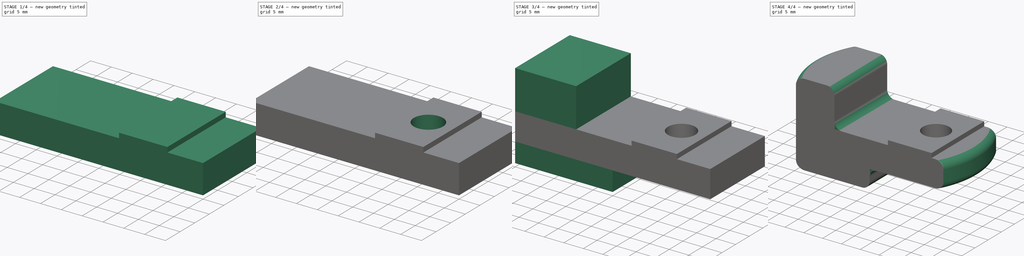
[diagram: build sequence overview — one tinted view per stage of 4, left to right]
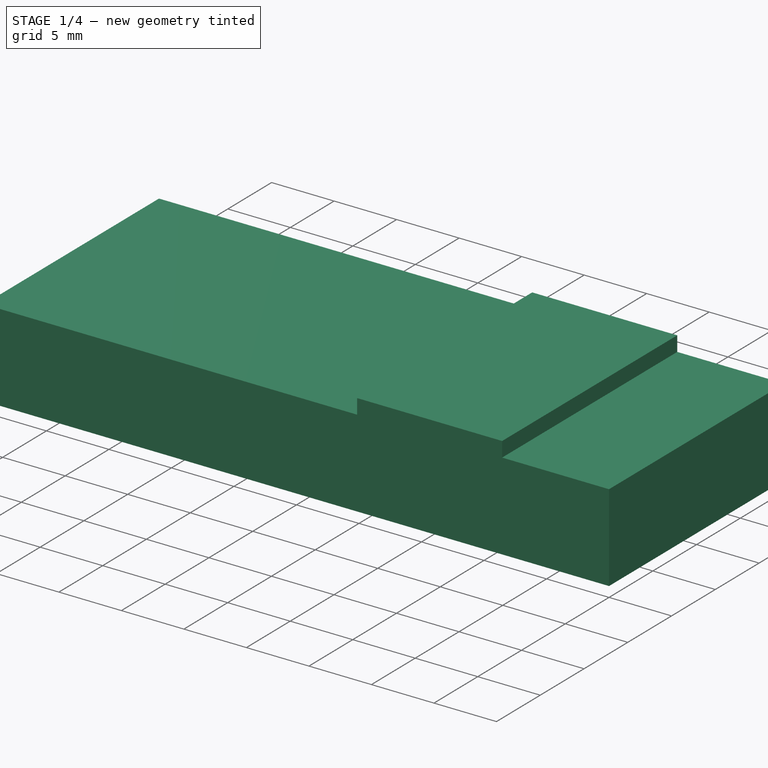
[diagram: stage 1 of 4 — iso view after this stage's code; geometry added in this stage tinted green]
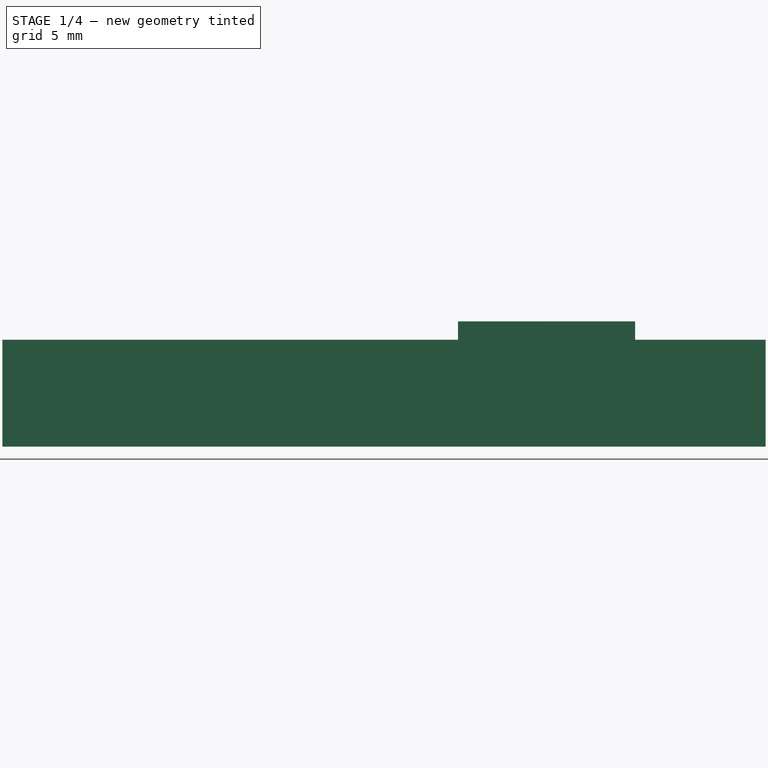
[diagram: stage 1 of 4 — front view after this stage's code; geometry added in this stage tinted green]
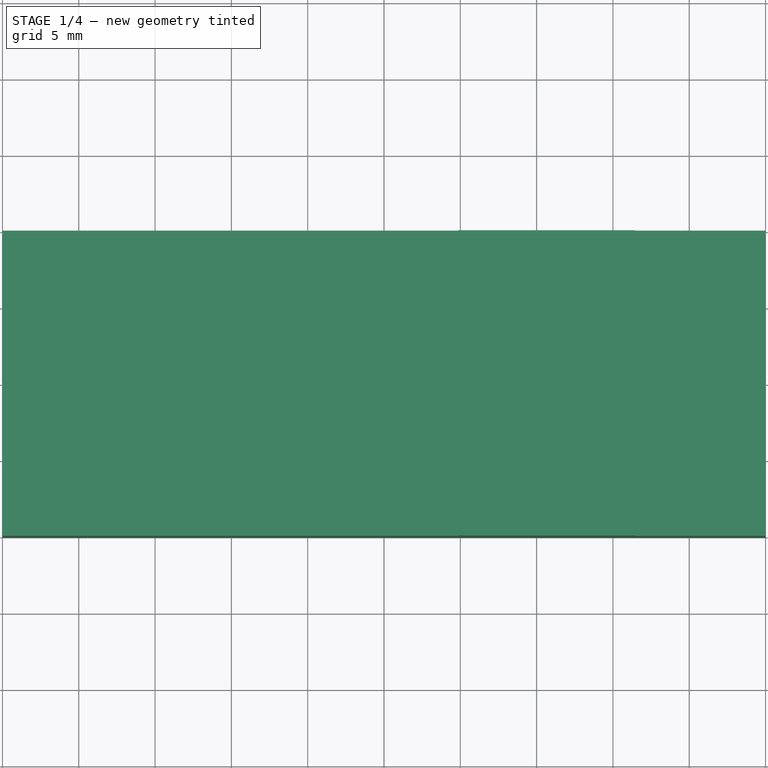
[diagram: stage 1 of 4 — top view after this stage's code; geometry added in this stage tinted green]
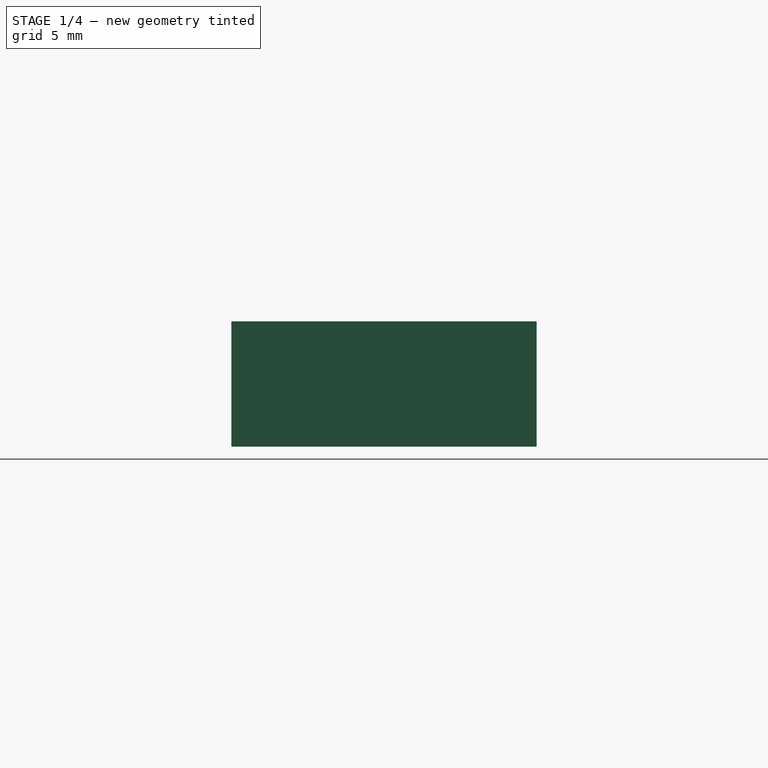
[diagram: stage 1 of 4 — right view after this stage's code; geometry added in this stage tinted green]
FCSTD DOCUMENT  (FreeCAD 0.17R10283 (Git))
Label: zbase_b
License: All rights reserved
LicenseURL: http://en.wikipedia.org/wiki/All_rights_reserved
objects: Sketcher::SketchObject×8, PartDesign::Pad×4, PartDesign::Pocket×4, PartDesign::Chamfer×1, PartDesign::Fillet×1, PartDesign::Body×1
note: 27 computed .brp shape members not serialized (recipe doc carries the construction recipe); baked Part::Feature solids carry a one-line shape summary decoded from their .brp

FEATURE [Sketcher::SketchObject] Sketch
  MapMode = 5
  Support = -> [XY_Plane]
  sketch-geometry (4):
    g0: LineSegment StartX=-25 StartY=10 StartZ=0 EndX=25 EndY=10 EndZ=0
    g1: LineSegment StartX=25 StartY=10 StartZ=0 EndX=25 EndY=-10 EndZ=0
    g2: LineSegment StartX=25 StartY=-10 StartZ=0 EndX=-25 EndY=-10 EndZ=0
    g3: LineSegment StartX=-25 StartY=-10 StartZ=0 EndX=-25 EndY=10 EndZ=0
  constraints (11):
    c: Coincident(g0,g1)
    c: Coincident(g1,g2)
    c: Coincident(g2,g3)
    c: Coincident(g3,g0)
    c: Horizontal(g0)
    c: Horizontal(g2)
    c: Vertical(g1)
    c: Vertical(g3)
    c: DistanceY(g1,g1) = 20
    c: DistanceX(g0,g0) = 50
    c: Symmetric(g0,g2,g-1)
FEATURE [PartDesign::Pad] Pad
  Length = 7
  Length2 = 100
  Profile = -> Sketch
  Type = 0
FEATURE [Sketcher::SketchObject] Sketch001
  ExternalGeometry = -> [Pad]
  MapMode = 5
  Placement = pos=(0,0,7) rot=(0,0,1;0rad)
  Support = -> [Pad]
  sketch-geometry (4):
    g0: LineSegment StartX=4.85 StartY=10 StartZ=0 EndX=16.45 EndY=10 EndZ=0
    g1: LineSegment StartX=16.45 StartY=10 StartZ=0 EndX=16.45 EndY=-10 EndZ=0
    g2: LineSegment StartX=16.45 StartY=-10 StartZ=0 EndX=4.85 EndY=-10 EndZ=0
    g3: LineSegment StartX=4.85 StartY=-10 StartZ=0 EndX=4.85 EndY=10 EndZ=0
  constraints (12):
    c: Coincident(g0,g1)
    c: Coincident(g1,g2)
    c: Coincident(g2,g3)
    c: Coincident(g3,g0)
    c: Horizontal(g0)
    c: Horizontal(g2)
    c: Vertical(g1)
    c: Vertical(g3)
    c: DistanceX(g-1,g0) = 4.85
    c: DistanceX(g0,g0) = 11.6
    c: DistanceY(g-3,g0) = 0
    c: Symmetric(g0,g1,g-1)
FEATURE [PartDesign::Pad] Pad001
  BaseFeature = -> Pad
  Length = 1.2
  Length2 = 100
  Profile = -> Sketch001
  Type = 0
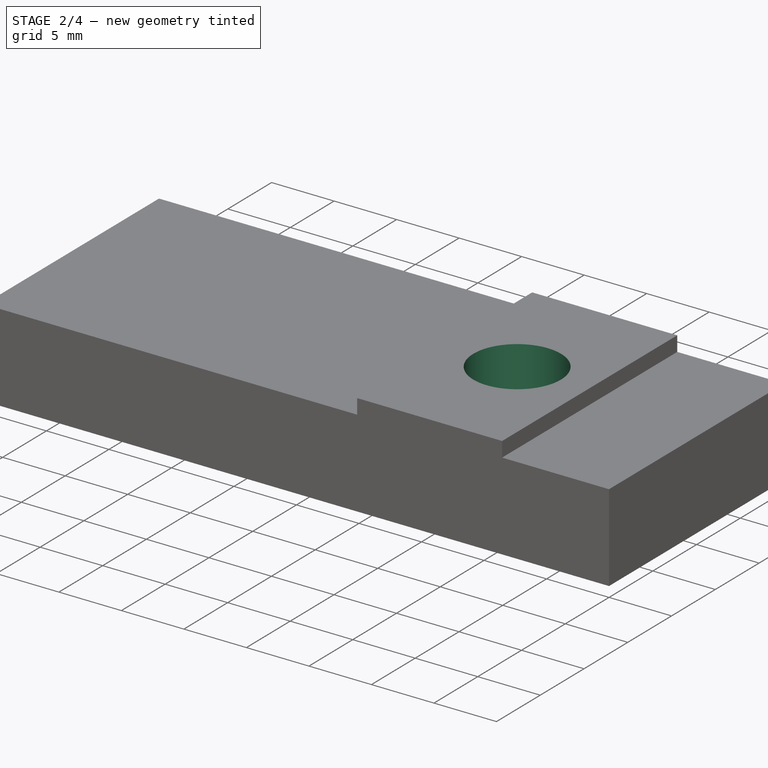
[diagram: stage 2 of 4 — iso view after this stage's code; geometry added in this stage tinted green]
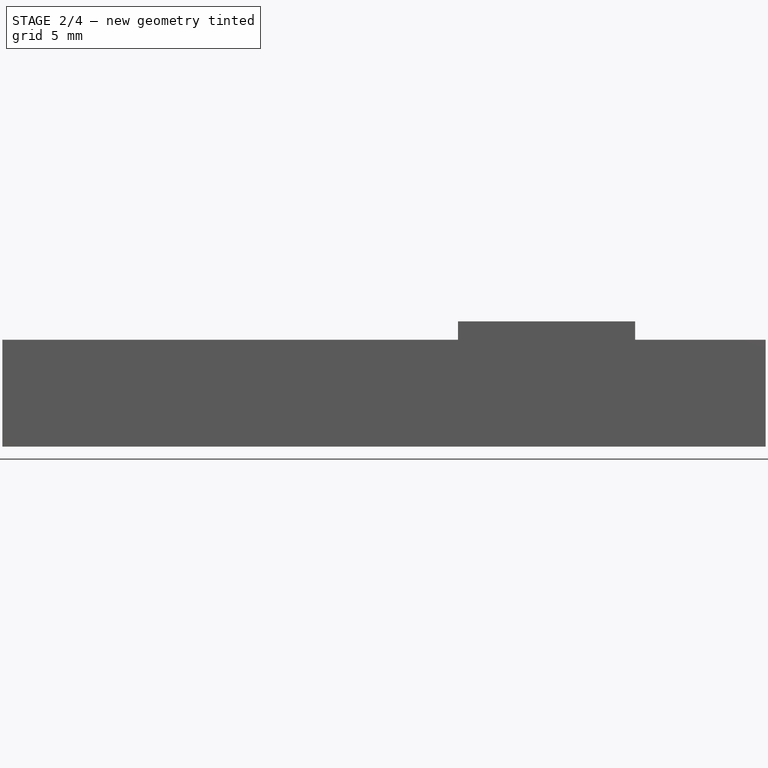
[diagram: stage 2 of 4 — front view after this stage's code; geometry added in this stage tinted green]
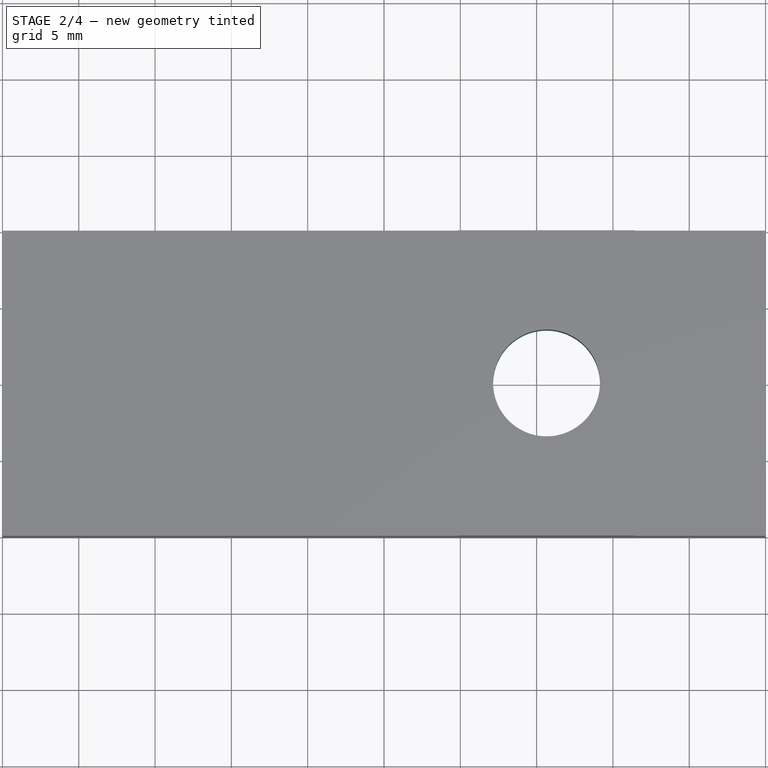
[diagram: stage 2 of 4 — top view after this stage's code; geometry added in this stage tinted green]
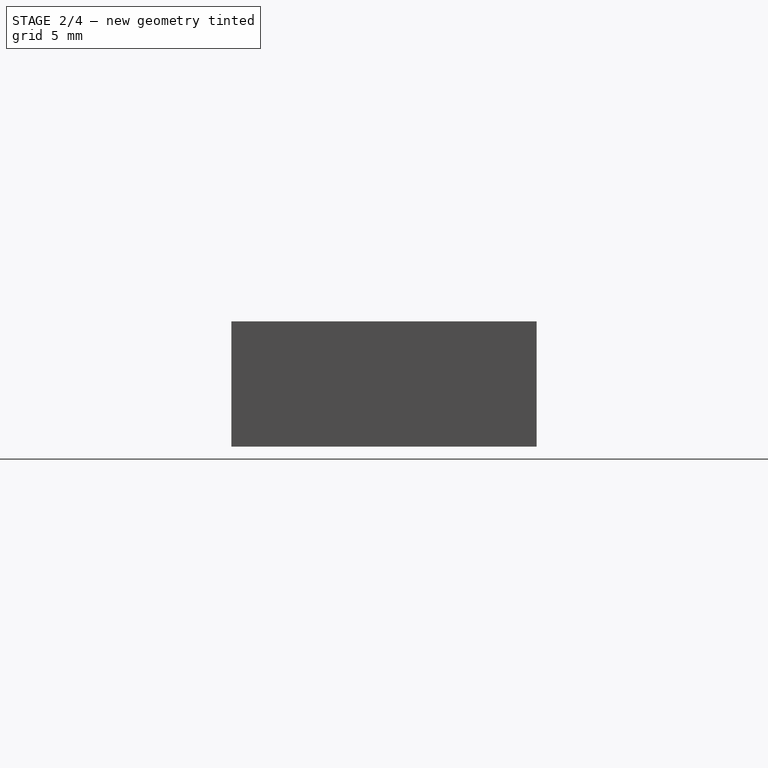
[diagram: stage 2 of 4 — right view after this stage's code; geometry added in this stage tinted green]
FEATURE [Sketcher::SketchObject] Sketch002
  MapMode = 5
  Placement = pos=(0,0,0) rot=(1,0,0;3.14159rad)
  Support = -> [Pad001]
  sketch-geometry (1):
    g0: Circle CenterX=10.65 CenterY=0 CenterZ=0 NormalX=0 NormalY=0 NormalZ=1 Radius=3.5
  constraints (3):
    c: PointOnObject(g0,g-1)
    c: Radius(g0) = 3.5
    c: DistanceX(g-1,g0) = 10.65
FEATURE [PartDesign::Pocket] Pocket
  BaseFeature = -> Pad001
  Length = 5
  Profile = -> Sketch002
  Type = 1
FEATURE [Sketcher::SketchObject] Sketch003
  ExternalGeometry = -> [Pocket]
  MapMode = 5
  Placement = pos=(0,0,0) rot=(1,0,0;3.14159rad)
  Support = -> [Pocket]
  sketch-geometry (1):
    g0: Circle CenterX=10.65 CenterY=0 CenterZ=0 NormalX=0 NormalY=0 NormalZ=1 Radius=6
  constraints (2):
    c: Coincident(g0,g-3)
    c: Radius(g0) = 6
FEATURE [PartDesign::Pocket] Pocket001
  BaseFeature = -> Pocket
  Length = 1
  Profile = -> Sketch003
  Type = 0
FEATURE [PartDesign::Chamfer] Chamfer
  Base = -> Pocket001 [Edge31]
  BaseFeature = -> Pocket001
  Size = 2.49
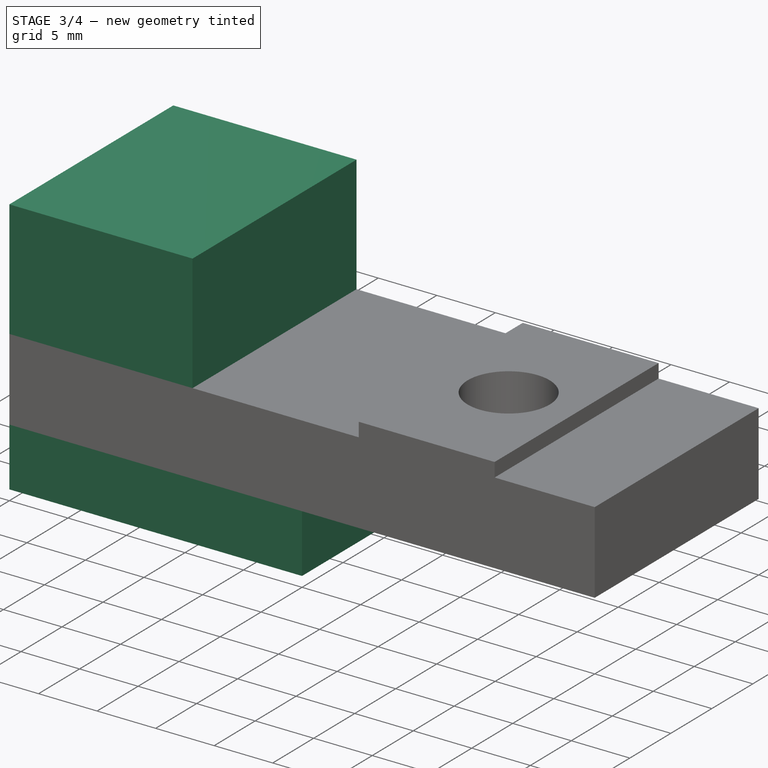
[diagram: stage 3 of 4 — iso view after this stage's code; geometry added in this stage tinted green]
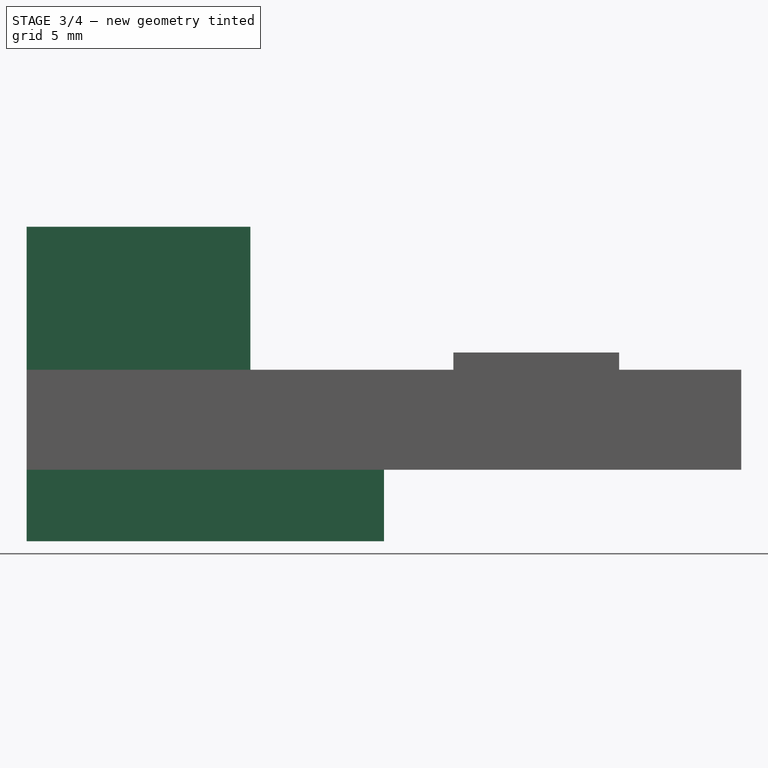
[diagram: stage 3 of 4 — front view after this stage's code; geometry added in this stage tinted green]
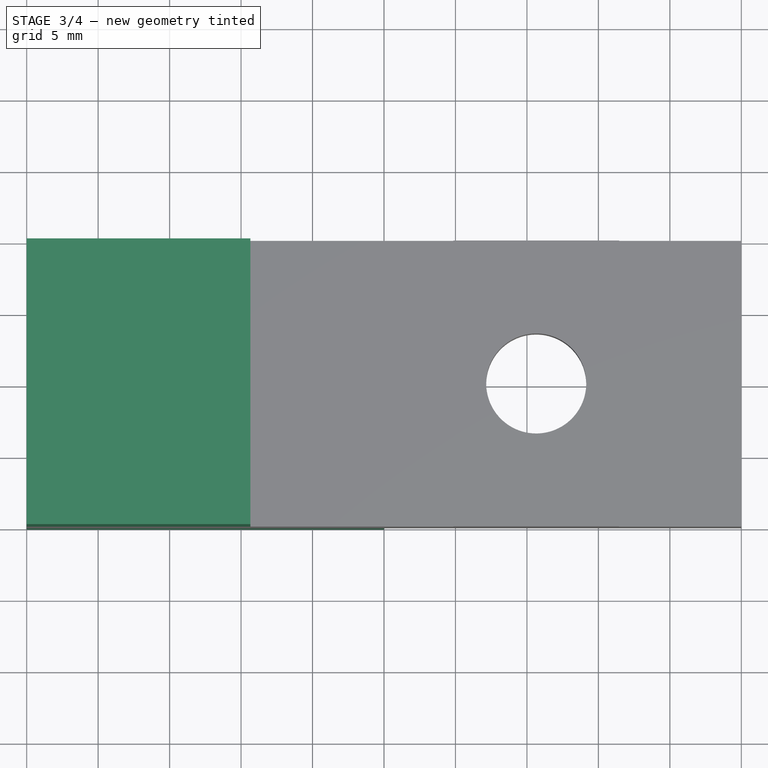
[diagram: stage 3 of 4 — top view after this stage's code; geometry added in this stage tinted green]
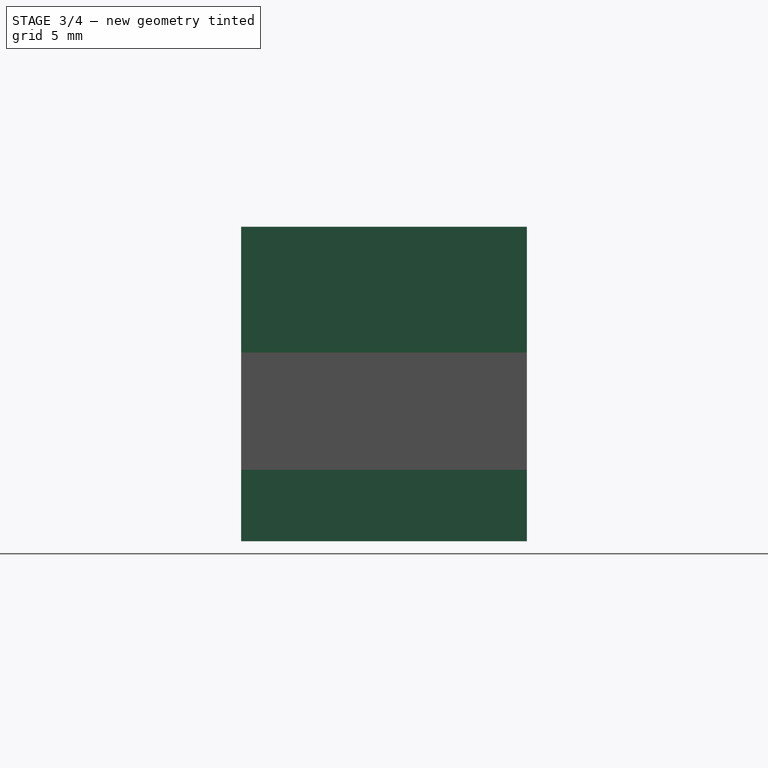
[diagram: stage 3 of 4 — right view after this stage's code; geometry added in this stage tinted green]
FEATURE [Sketcher::SketchObject] Sketch004
  ExternalGeometry = -> [Chamfer]
  MapMode = 5
  Placement = pos=(0,0,0) rot=(1,0,0;3.14159rad)
  Support = -> [Chamfer]
  sketch-geometry (4):
    g0: LineSegment StartX=-25 StartY=10 StartZ=0 EndX=0 EndY=10 EndZ=0
    g1: LineSegment StartX=0 StartY=10 StartZ=0 EndX=0 EndY=-10 EndZ=0
    g2: LineSegment StartX=0 StartY=-10 StartZ=0 EndX=-25 EndY=-10 EndZ=0
    g3: LineSegment StartX=-25 StartY=-10 StartZ=0 EndX=-25 EndY=10 EndZ=0
  constraints (10):
    c: Coincident(g0,g1)
    c: Coincident(g1,g2)
    c: Coincident(g2,g3)
    c: Coincident(g3,g0)
    c: Horizontal(g0)
    c: Horizontal(g2)
    c: Vertical(g1)
    c: Vertical(g3)
    c: Coincident(g0,g-3)
    c: DistanceX(g0,g-1) = 0
FEATURE [PartDesign::Pad] Pad002
  BaseFeature = -> Chamfer
  Length = 5
  Length2 = 100
  Profile = -> Sketch004
  Type = 0
FEATURE [Sketcher::SketchObject] Sketch005
  ExternalGeometry = -> [Pad002]
  MapMode = 5
  Placement = pos=(0,0,-5) rot=(1,0,0;3.14159rad)
  Support = -> [Pad002]
  sketch-geometry (1):
    g0: Circle CenterX=-10.65 CenterY=0 CenterZ=0 NormalX=0 NormalY=0 NormalZ=1 Radius=4
  constraints (3):
    c: PointOnObject(g0,g-1)
    c: DistanceX(g0,g-3) = 21.3
    c: Radius(g0) = 4
FEATURE [PartDesign::Pocket] Pocket002
  BaseFeature = -> Pad002
  Length = 7
  Profile = -> Sketch005
  Type = 0
FEATURE [Sketcher::SketchObject] Sketch006
  ExternalGeometry = -> [Pocket002]
  MapMode = 5
  Placement = pos=(0,0,7) rot=(0,0,1;0rad)
  Support = -> [Pocket002]
  sketch-geometry (4):
    g0: LineSegment StartX=-25 StartY=10 StartZ=0 EndX=-9.35 EndY=10 EndZ=0
    g1: LineSegment StartX=-9.35 StartY=10 StartZ=0 EndX=-9.35 EndY=-10 EndZ=0
    g2: LineSegment StartX=-9.35 StartY=-10 StartZ=0 EndX=-25 EndY=-10 EndZ=0
    g3: LineSegment StartX=-25 StartY=-10 StartZ=0 EndX=-25 EndY=10 EndZ=0
  constraints (10):
    c: Coincident(g0,g1)
    c: Coincident(g1,g2)
    c: Coincident(g2,g3)
    c: Coincident(g3,g0)
    c: Horizontal(g0)
    c: Horizontal(g2)
    c: Vertical(g1)
    c: Vertical(g3)
    c: Coincident(g0,g-4)
    c: DistanceX(g0,g-3) = 20
FEATURE [PartDesign::Pad] Pad003
  BaseFeature = -> Pocket002
  Length = 10
  Length2 = 100
  Profile = -> Sketch006
  Type = 0
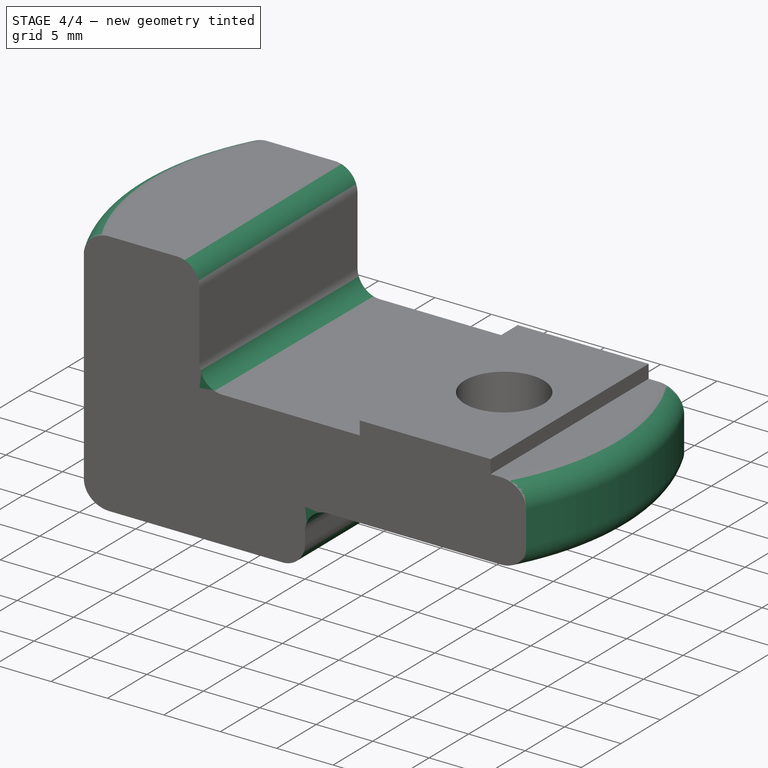
[diagram: stage 4 of 4 — iso view after this stage's code; geometry added in this stage tinted green]
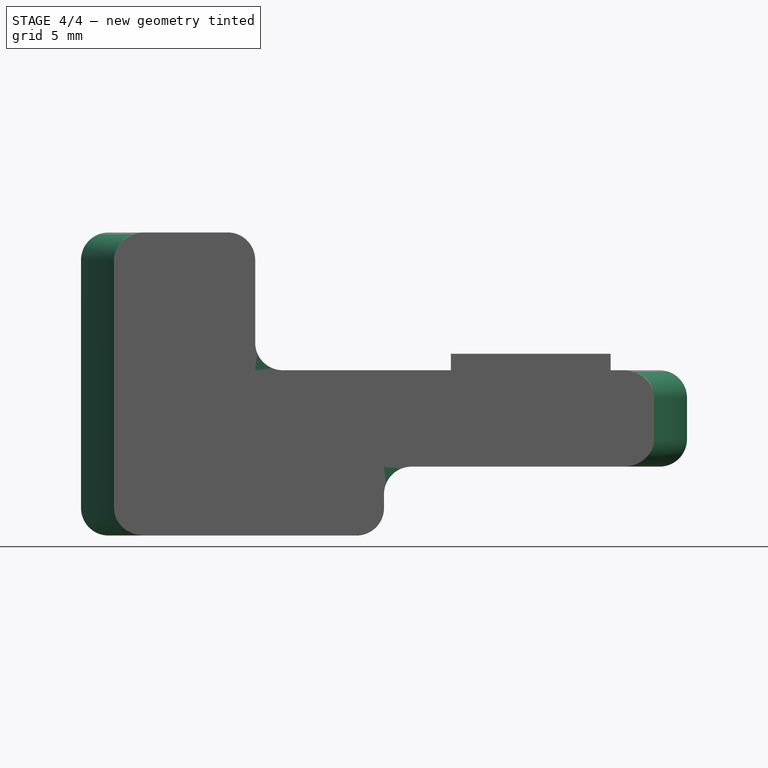
[diagram: stage 4 of 4 — front view after this stage's code; geometry added in this stage tinted green]
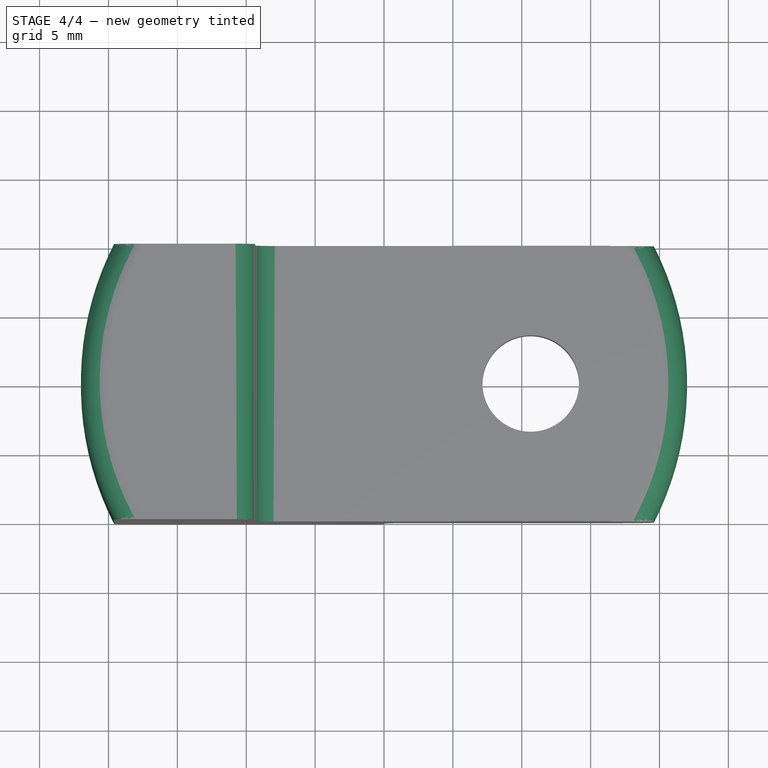
[diagram: stage 4 of 4 — top view after this stage's code; geometry added in this stage tinted green]
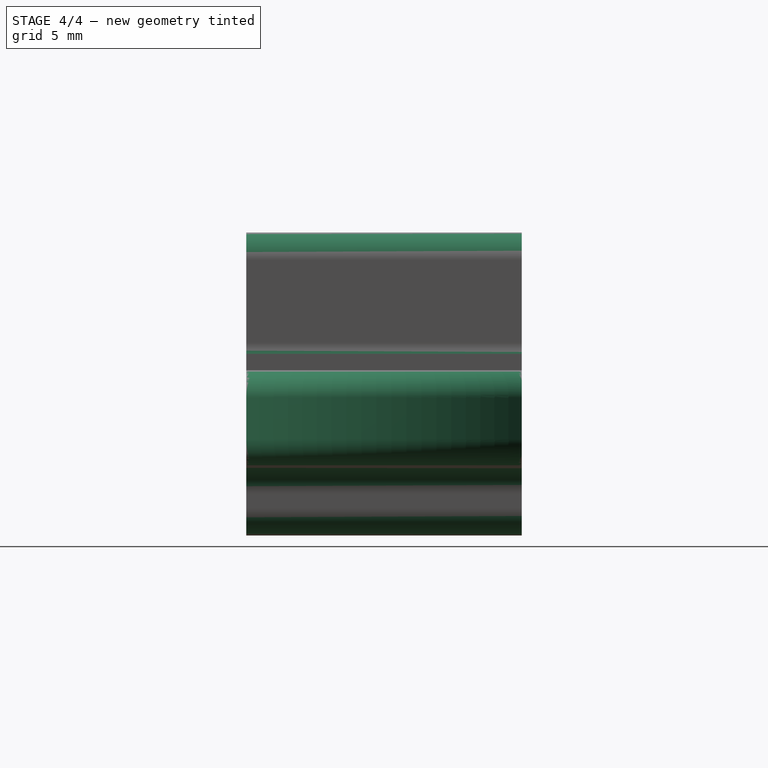
[diagram: stage 4 of 4 — right view after this stage's code; geometry added in this stage tinted green]
FEATURE [Sketcher::SketchObject] Sketch007
  ExternalGeometry = -> [Pad003]
  MapMode = 5
  Placement = pos=(0,0,-5) rot=(1,0,0;3.14159rad)
  Support = -> [Pad003]
  sketch-geometry (8):
    g0: ArcOfCircle CenterX=0 CenterY=0 CenterZ=0 NormalX=0 NormalY=0 NormalZ=1 Radius=22 StartAngle=2.66973 EndAngle=3.61345
    g1: ArcOfCircle CenterX=0 CenterY=0 CenterZ=0 NormalX=0 NormalY=0 NormalZ=1 Radius=22 StartAngle=5.81132 EndAngle=6.75505
    g2: LineSegment StartX=-25 StartY=10 StartZ=0 EndX=-19.5959 EndY=10 EndZ=0
    g3: LineSegment StartX=19.5959 StartY=10 StartZ=0 EndX=25 EndY=10 EndZ=0
    g4: LineSegment StartX=25 StartY=-10 StartZ=0 EndX=19.5959 EndY=-10 EndZ=0
    g5: LineSegment StartX=-19.5959 StartY=-10 StartZ=0 EndX=-25 EndY=-10 EndZ=0
    g6: LineSegment StartX=-25 StartY=-10 StartZ=0 EndX=-25 EndY=10 EndZ=0
    g7: LineSegment StartX=25 StartY=10 StartZ=0 EndX=25 EndY=-10 EndZ=0
  constraints (20):
    c: Coincident(g0,g-1)
    c: Coincident(g1,g-1)
    c: Coincident(g2,g-3)
    c: Coincident(g2,g0)
    c: Coincident(g3,g1)
    c: Coincident(g3,g-4)
    c: Coincident(g4,g-4)
    c: Coincident(g5,g0)
    c: Coincident(g5,g-3)
    c: Coincident(g6,g5)
    c: Coincident(g6,g2)
    c: Coincident(g7,g3)
    c: Coincident(g7,g4)
    c: Horizontal(g5)
    c: Horizontal(g2)
    c: Horizontal(g3)
    c: Horizontal(g4)
    c: Coincident(g1,g4)
    c: Radius(g0) = 22
    c: Equal(g0,g1)
FEATURE [PartDesign::Pocket] Pocket003
  BaseFeature = -> Pad003
  Length = 5
  Profile = -> Sketch007
  Type = 1
FEATURE [PartDesign::Fillet] Fillet
  Base = -> Pocket003 [Edge43,Edge33,Edge12,Edge10,Edge24,Edge55,Edge46,Edge50]
  BaseFeature = -> Pocket003
  Radius = 2
FEATURE [PartDesign::Body] Body
  Group = -> [Sketch,Pad,Sketch001,Pad001,Sketch002,Pocket,Sketch003,Pocket001,Chamfer,Sketch004,Pad002,Sketch005,Pocket002,Sketch006,Pad003,Sketch007,Pocket003,Fillet]
  Origin = -> BodyOrigin
  Tip = -> Fillet
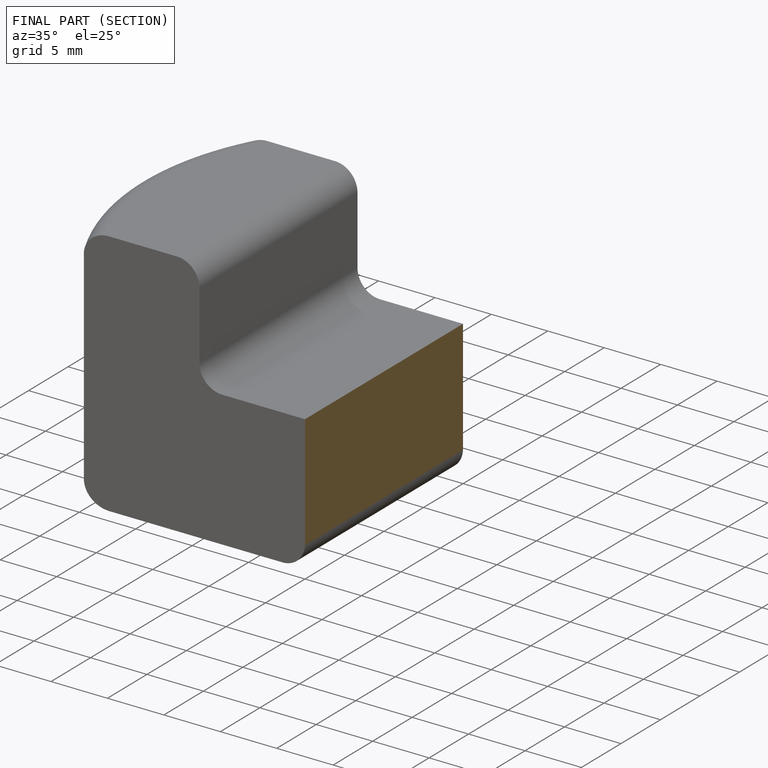
[diagram: finished part — half-section view (interior)]
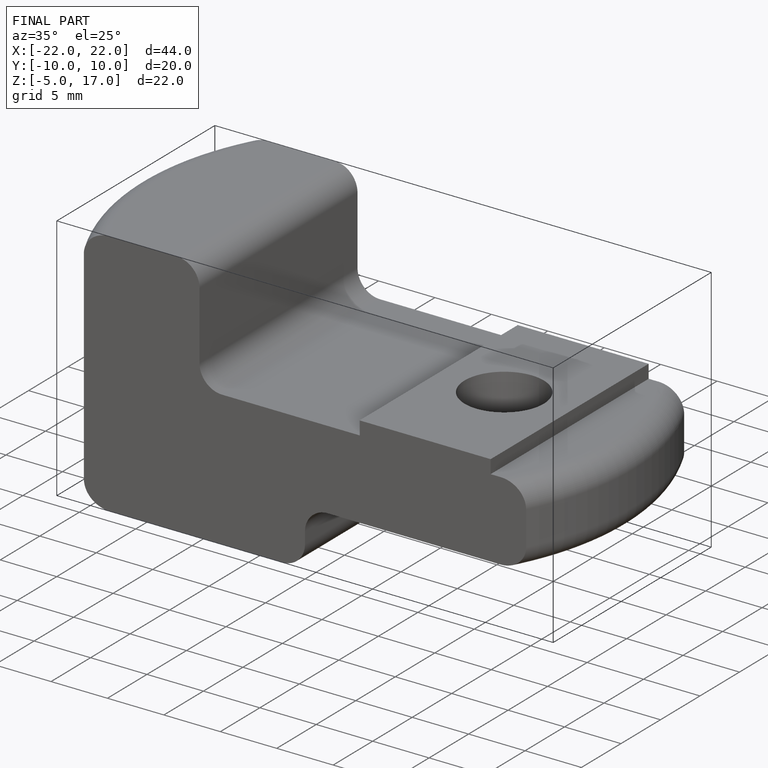
[diagram: finished part — iso view with bounding-box wireframe]
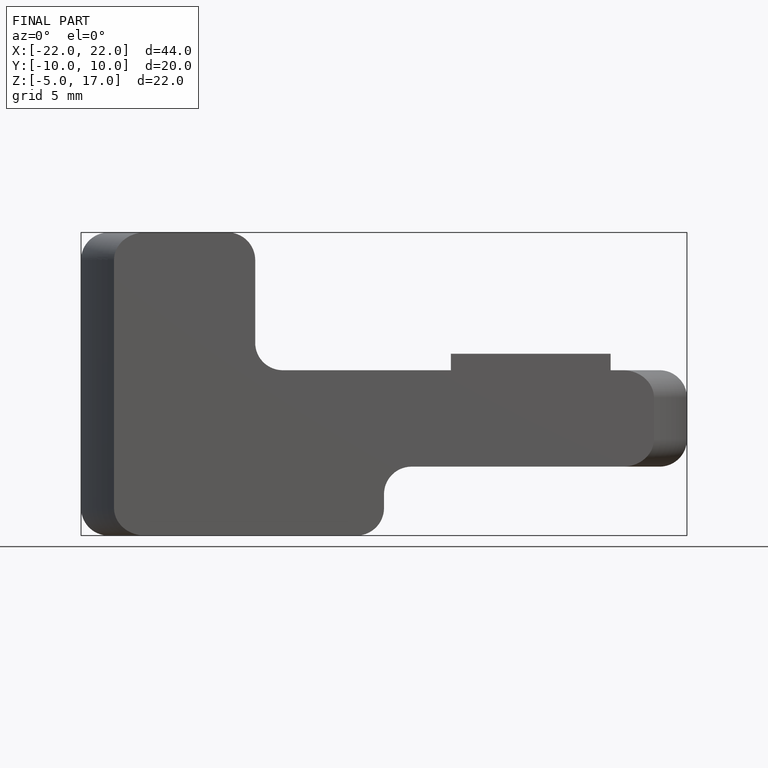
[diagram: finished part — front view with bounding-box wireframe]
